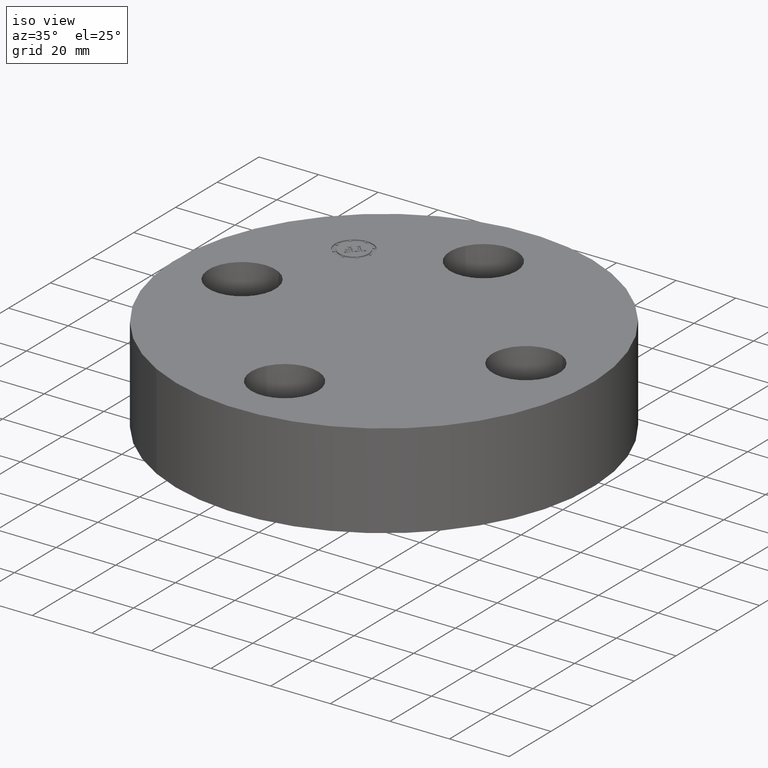
[diagram: clean part render]
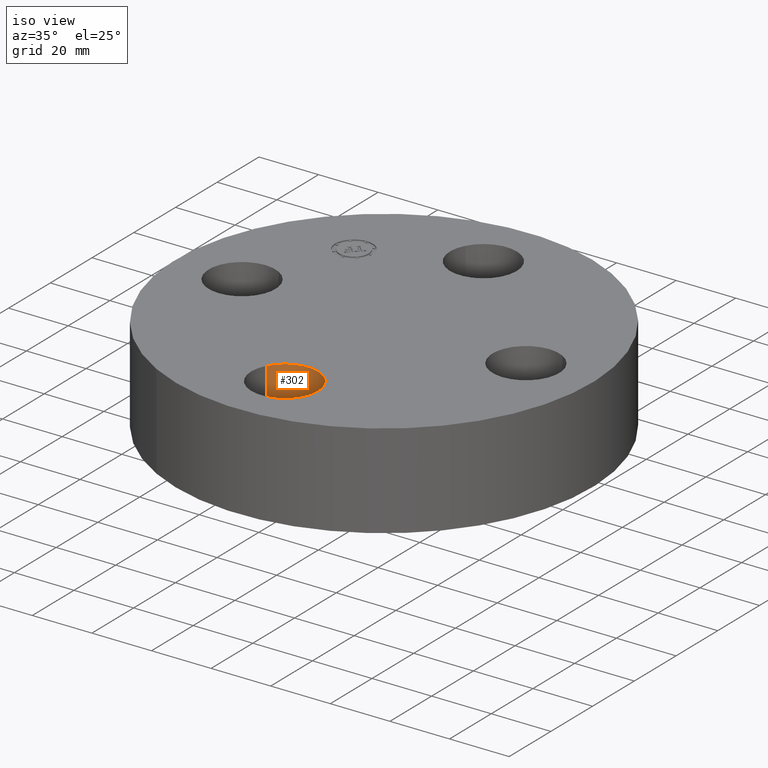
[diagram: same view with one face highlighted and labeled with its STEP entity id]
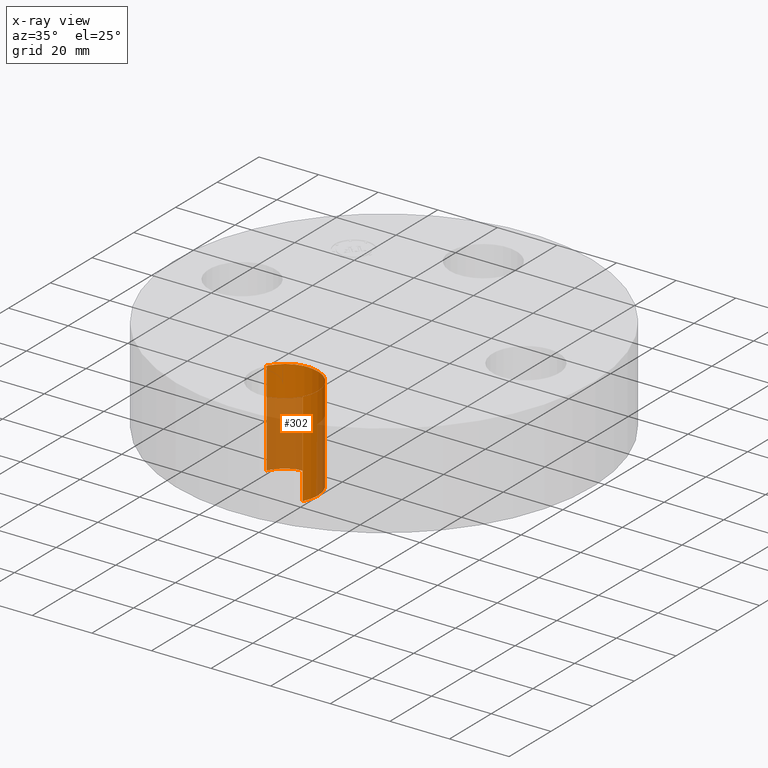
[diagram: x-ray of the same camera — body ghosted, the highlighted face saturated]
A machine part, iso view. The second image highlights one B-rep face of the part: STEP entity #302.
The next image is the same camera in x-ray: the body ghosted, the highlighted face saturated — about 48% of this face is hidden behind the body in this view.
In plain terms, the highlighted cylindrical surface (partial cylindrical patch) has radius 11.176 mm, axis along (-0, 0, -1).
Its self-contained STEP definition (entity closure, byte-faithful):
#70=AXIS2_PLACEMENT_3D('Circle Axis2P3D',#68,#69,$) ;
#243=AXIS2_PLACEMENT_3D('Cylinder Axis2P3D',#240,#241,#242) ;
#256=AXIS2_PLACEMENT_3D('Circle Axis2P3D',#254,#255,$) ;
#275=AXIS2_PLACEMENT_3D('Circle Axis2P3D',#273,#274,$) ;
#289=AXIS2_PLACEMENT_3D('Circle Axis2P3D',#287,#288,$) ;
#65=CARTESIAN_POINT('Vertex',(0.0410064967415,-1.43691500001,-0.250000000001)) ;
#68=CARTESIAN_POINT('Axis2P3D Location',(1.22386790116E-016,-1.87500000001,-0.250000000001)) ;
#72=CARTESIAN_POINT('Vertex',(-0.0410064967415,-1.43691500001,-0.250000000001)) ;
#240=CARTESIAN_POINT('Axis2P3D Location',(2.29621274841E-016,-1.87500000001,1.24606299213)) ;
#245=CARTESIAN_POINT('Line Origine',(-0.386136327233,-1.66405276302,0.625000000003)) ;
#249=CARTESIAN_POINT('Vertex',(-0.386136327233,-1.66405276302,0.)) ;
#251=CARTESIAN_POINT('Vertex',(-0.386136327233,-1.66405276302,1.25000000001)) ;
#254=CARTESIAN_POINT('Axis2P3D Location',(2.29621274841E-016,-1.87500000001,0.)) ;
#258=CARTESIAN_POINT('Vertex',(-0.0410064967415,-1.43691500001,1.39870617276E-016)) ;
#261=CARTESIAN_POINT('Line Origine',(-0.0410064967415,-1.43691500001,0.625000000003)) ;
#266=CARTESIAN_POINT('Line Origine',(0.0410064967415,-1.43691500001,0.625000000003)) ;
#270=CARTESIAN_POINT('Vertex',(0.0410064967415,-1.43691500001,1.39870617276E-016)) ;
#273=CARTESIAN_POINT('Axis2P3D Location',(2.29621274841E-016,-1.87500000001,0.)) ;
#277=CARTESIAN_POINT('Vertex',(0.386136327233,-2.08594723699,0.)) ;
#280=CARTESIAN_POINT('Line Origine',(0.386136327233,-2.08594723699,0.625000000003)) ;
#284=CARTESIAN_POINT('Vertex',(0.386136327233,-2.08594723699,1.25000000001)) ;
#287=CARTESIAN_POINT('Axis2P3D Location',(2.29621274841E-016,-1.87500000001,1.25000000001)) ;
#69=DIRECTION('Axis2P3D Direction',(0.,0.,-0.0393700787402)) ;
#241=DIRECTION('Axis2P3D Direction',(-0.,0.,-0.0393700787402)) ;
#242=DIRECTION('Axis2P3D XDirection',(0.0345504945626,-0.0188750212049,-0.)) ;
#246=DIRECTION('Vector Direction',(0.,0.,-0.0393700787402)) ;
#255=DIRECTION('Axis2P3D Direction',(-0.,0.,-0.0393700787402)) ;
#262=DIRECTION('Vector Direction',(0.,0.,-0.0393700787402)) ;
#267=DIRECTION('Vector Direction',(0.,0.,-0.0393700787402)) ;
#274=DIRECTION('Axis2P3D Direction',(-0.,0.,-0.0393700787402)) ;
#281=DIRECTION('Vector Direction',(0.,0.,-0.0393700787402)) ;
#288=DIRECTION('Axis2P3D Direction',(-0.,0.,-0.0393700787402)) ;
#247=VECTOR('Line Direction',#246,0.0393700787402) ;
#263=VECTOR('Line Direction',#262,0.0393700787402) ;
#268=VECTOR('Line Direction',#267,0.0393700787402) ;
#282=VECTOR('Line Direction',#281,0.0393700787402) ;
#293=ORIENTED_EDGE('',*,*,#253,.F.) ;
#294=ORIENTED_EDGE('',*,*,#260,.T.) ;
#295=ORIENTED_EDGE('',*,*,#265,.T.) ;
#296=ORIENTED_EDGE('',*,*,#74,.T.) ;
#297=ORIENTED_EDGE('',*,*,#272,.F.) ;
#298=ORIENTED_EDGE('',*,*,#279,.T.) ;
#299=ORIENTED_EDGE('',*,*,#286,.T.) ;
#300=ORIENTED_EDGE('',*,*,#291,.F.) ;
#302=ADVANCED_FACE('PartBody',(#301),#244,.F.) ;
#71=CIRCLE('generated circle',#70,0.440000000002) ;
#257=CIRCLE('generated circle',#256,0.440000000002) ;
#276=CIRCLE('generated circle',#275,0.440000000002) ;
#290=CIRCLE('generated circle',#289,0.440000000002) ;
#244=CYLINDRICAL_SURFACE('generated cylinder',#243,0.440000000002) ;
#74=EDGE_CURVE('',#73,#66,#71,.T.) ;
#253=EDGE_CURVE('',#250,#252,#248,.F.) ;
#260=EDGE_CURVE('',#250,#259,#257,.T.) ;
#265=EDGE_CURVE('',#259,#73,#264,.T.) ;
#272=EDGE_CURVE('',#271,#66,#269,.T.) ;
#279=EDGE_CURVE('',#271,#278,#276,.T.) ;
#286=EDGE_CURVE('',#278,#285,#283,.F.) ;
#291=EDGE_CURVE('',#252,#285,#290,.T.) ;
#292=EDGE_LOOP('',(#293,#294,#295,#296,#297,#298,#299,#300)) ;
#301=FACE_OUTER_BOUND('',#292,.T.) ;
#248=LINE('Line',#245,#247) ;
#264=LINE('Line',#261,#263) ;
#269=LINE('Line',#266,#268) ;
#283=LINE('Line',#280,#282) ;
#66=VERTEX_POINT('',#65) ;
#73=VERTEX_POINT('',#72) ;
#250=VERTEX_POINT('',#249) ;
#252=VERTEX_POINT('',#251) ;
#259=VERTEX_POINT('',#258) ;
#271=VERTEX_POINT('',#270) ;
#278=VERTEX_POINT('',#277) ;
#285=VERTEX_POINT('',#284) ;